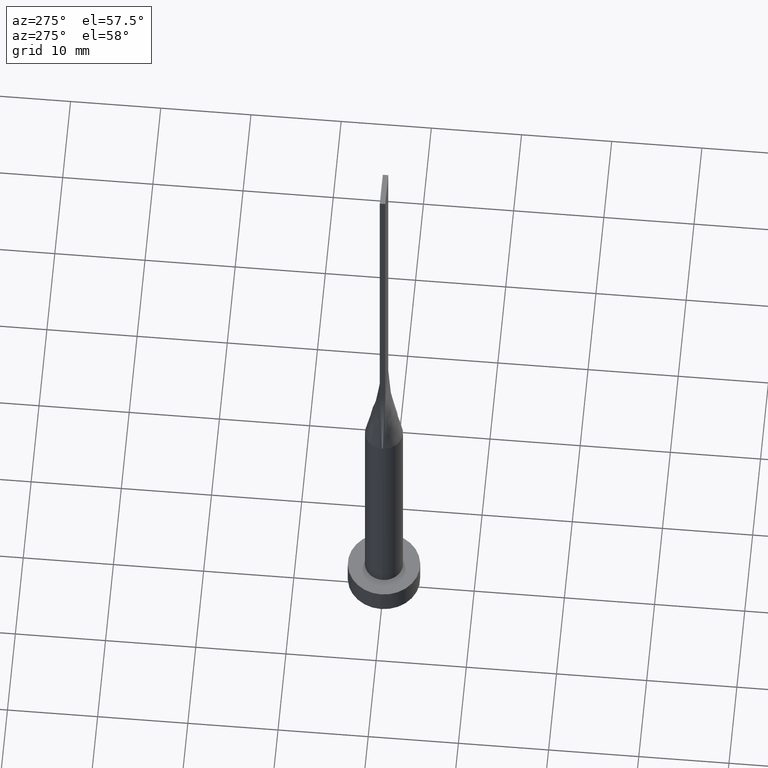
[diagram: clean part render]
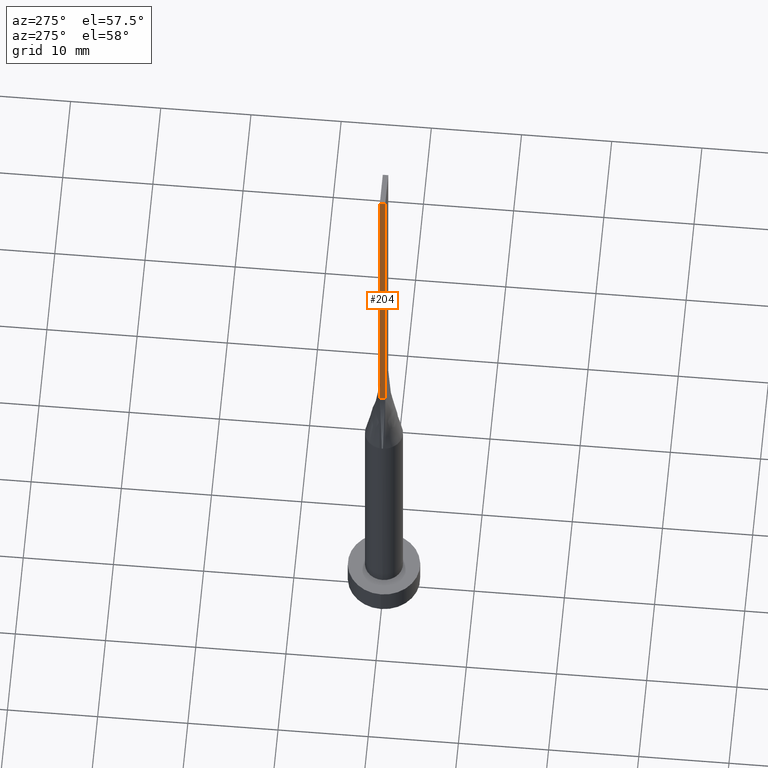
[diagram: same view with one face highlighted and labeled with its STEP entity id]
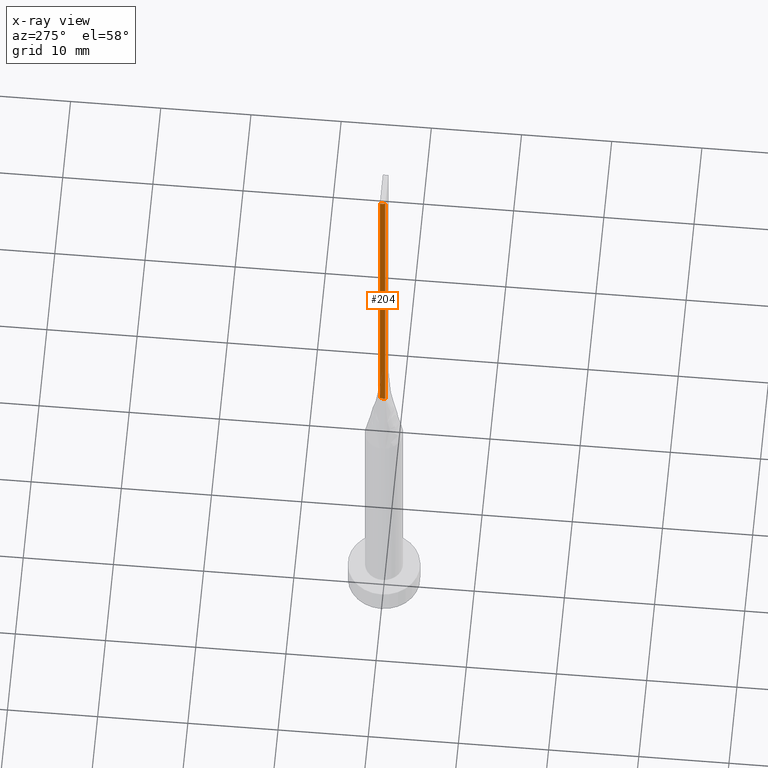
[diagram: x-ray of the same camera — body ghosted, the highlighted face saturated]
A machine part, auxiliary view. The second image highlights one B-rep face of the part: STEP entity #204.
The next image is the same camera in x-ray: the body ghosted, the highlighted face saturated — about 0% of this face is hidden behind the body in this view.
In plain terms, the highlighted planar face has unit normal (1, -0, 0).
Its self-contained STEP definition (entity closure, byte-faithful):
#9 = DIRECTION ( 'NONE',  ( -0.000000000000000000, -0.000000000000000000, -1.000000000000000000 ) ) ;
#17 = CARTESIAN_POINT ( 'NONE',  ( -1.899999999999999689, 0.3000000000000002109, 80.00000000000000000 ) ) ;
#49 = VECTOR ( 'NONE', #357, 1000.000000000000000 ) ;
#55 = CARTESIAN_POINT ( 'NONE',  ( -1.899999999999999911, -0.2999999999999994893, 40.00000000000000000 ) ) ;
#66 = PLANE ( 'NONE',  #422 ) ;
#105 = CARTESIAN_POINT ( 'NONE',  ( -1.899999999999999689, 0.3000000000000002109, 80.00000000000000000 ) ) ;
#110 = EDGE_CURVE ( 'NONE', #541, #464, #177, .T. ) ;
#119 = VERTEX_POINT ( 'NONE', #537 ) ;
#150 = DIRECTION ( 'NONE',  ( -0.000000000000000000, -0.000000000000000000, -1.000000000000000000 ) ) ;
#177 = LINE ( 'NONE', #181, #49 ) ;
#181 = CARTESIAN_POINT ( 'NONE',  ( -1.899999999999999689, 0.3000000000000002109, 40.00000000000000000 ) ) ;
#194 = DIRECTION ( 'NONE',  ( 1.000000000000000000, -3.614007241618350743E-16, 0.000000000000000000 ) ) ;
#204 = ADVANCED_FACE ( 'NONE', ( #554 ), #66, .F. ) ;
#239 = DIRECTION ( 'NONE',  ( 3.614007241618350743E-16, 1.000000000000000000, 0.000000000000000000 ) ) ;
#241 = EDGE_CURVE ( 'NONE', #395, #119, #461, .T. ) ;
#256 = ORIENTED_EDGE ( 'NONE', *, *, #420, .F. ) ;
#274 = EDGE_CURVE ( 'NONE', #395, #541, #466, .T. ) ;
#285 = LINE ( 'NONE', #510, #328 ) ;
#314 = ORIENTED_EDGE ( 'NONE', *, *, #274, .T. ) ;
#328 = VECTOR ( 'NONE', #9, 1000.000000000000000 ) ;
#331 = DIRECTION ( 'NONE',  ( -3.614007241618350250E-16, -1.000000000000000000, 0.000000000000000000 ) ) ;
#357 = DIRECTION ( 'NONE',  ( -3.614007241618350250E-16, -1.000000000000000000, 0.000000000000000000 ) ) ;
#365 = CARTESIAN_POINT ( 'NONE',  ( -1.899999999999999689, 0.3000000000000002109, 80.00000000000000000 ) ) ;
#374 = CARTESIAN_POINT ( 'NONE',  ( -1.899999999999999689, 0.3000000000000002109, 80.00000000000000000 ) ) ;
#395 = VERTEX_POINT ( 'NONE', #365 ) ;
#420 = EDGE_CURVE ( 'NONE', #119, #464, #285, .T. ) ;
#422 = AXIS2_PLACEMENT_3D ( 'NONE', #374, #194, #239 ) ;
#443 = ORIENTED_EDGE ( 'NONE', *, *, #110, .T. ) ;
#461 = LINE ( 'NONE', #17, #573 ) ;
#464 = VERTEX_POINT ( 'NONE', #55 ) ;
#466 = LINE ( 'NONE', #105, #486 ) ;
#486 = VECTOR ( 'NONE', #150, 1000.000000000000000 ) ;
#510 = CARTESIAN_POINT ( 'NONE',  ( -1.899999999999999911, -0.2999999999999994893, 80.00000000000000000 ) ) ;
#511 = EDGE_LOOP ( 'NONE', ( #443, #256, #576, #314 ) ) ;
#537 = CARTESIAN_POINT ( 'NONE',  ( -1.899999999999999911, -0.2999999999999994893, 80.00000000000000000 ) ) ;
#541 = VERTEX_POINT ( 'NONE', #559 ) ;
#554 = FACE_OUTER_BOUND ( 'NONE', #511, .T. ) ;
#559 = CARTESIAN_POINT ( 'NONE',  ( -1.899999999999999689, 0.3000000000000002109, 40.00000000000000000 ) ) ;
#573 = VECTOR ( 'NONE', #331, 1000.000000000000000 ) ;
#576 = ORIENTED_EDGE ( 'NONE', *, *, #241, .F. ) ;